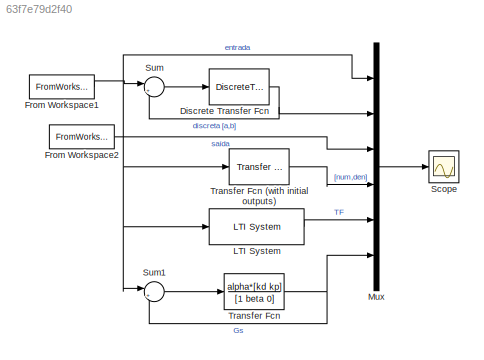
MODEL slx_63f7e79d2f40
KIND model
CONFIG AbsTol = auto
CONFIG EnableMultiTasking = off
CONFIG FixedStep = auto
CONFIG MaxStep = auto
CONFIG MinStep = auto
CONFIG RelTol = 1e-3
CONFIG SampleTimeConstraint = Unconstrained
CONFIG Solver = VariableStepAuto
CONFIG SolverName = VariableStepAuto
CONFIG StartTime = 0.0
CONFIG StopTime = 2.34
BLOCK [DiscreteTransferFcn] Discrete Transfer Fcn
  Denominator = conv([1 -1],[1 -b])
  InputPortMap = u0
  Numerator = a*[5 -2]
  Ports = [1, 1]
  SampleTime = dt
BLOCK [FromWorkspace] From Workspace1
  SampleTime = dt
  VariableName = uu
  ZeroCross = on
BLOCK [FromWorkspace] From Workspace2
  SampleTime = dt
  VariableName = yy
  ZeroCross = on
BLOCK [Reference] LTI System  REF=cstblocks/LTI System
  Ports = [1, 1]
  SourceBlock = cstblocks/LTI System
  SourceProductBaseCode = CT
  SourceProductName = Control System Toolbox
  SourceType = LTI Block
BLOCK [Mux] Mux
  DisplayOption = bar
  Inputs = 6
  Ports = [6, 1]
BLOCK [Scope] Scope
  Floating = off
  NumInputPorts = 1
  Ports = [1]
  ScopeSpecificationString = Simulink.scopes.TimeScopeBlockCfg('CurrentConfiguration', extmgr.ConfigurationSet(extmgr.Configuration('Core','General UI',true),extmgr.Configuration('Core','Source UI',true),extmgr.Configuration('Sources','WiredSimulink',true),extmgr.Configuration('Visuals','Time Domain',true,'SerializedDisplays',{struct('MinYLimReal','-2.72434','MaxYLimReal','2.57881','YLabelReal','','MinYLimMag','0.00000','MaxY...<+1538ch>
BLOCK [Sum] Sum
  IconShape = round
  InputSameDT = off
  Inputs = |+-
  OutDataTypeStr = Inherit: Inherit via internal rule
  Ports = [2, 1]
  SaturateOnIntegerOverflow = off
BLOCK [Sum] Sum1
  IconShape = round
  InputSameDT = off
  Inputs = |+-
  OutDataTypeStr = Inherit: Inherit via internal rule
  Ports = [2, 1]
  SaturateOnIntegerOverflow = off
BLOCK [TransferFcn] Transfer Fcn
  Denominator = [1 beta 0]
  Numerator = alpha*[kd kp]
BLOCK [Reference] Transfer Fcn (with initial outputs)  REF=simulink_extras/Additional
Linear/Transfer Fcn
(with initial outputs)
  Ports = [1, 1]
  SourceBlock = simulink_extras/Additional\nLinear/Transfer Fcn\n(with initial outputs)
  SourceProductBaseCode = SL
  SourceProductName = Simulink
  SourceType = Transfer Function with Initial Outputs
NET Discrete Transfer Fcn:1 -> Mux:2, Sum:2
NET From Workspace1:1 -> LTI System:1, Mux:1, Sum1:1, Sum:1, Transfer Fcn (with initial outputs):1
LINE From Workspace2:1 -> Mux:3
LINE LTI System:1 -> Mux:5
LINE Mux:1 -> Scope:1
LINE Sum1:1 -> Transfer Fcn:1
LINE Sum:1 -> Discrete Transfer Fcn:1
LINE Transfer Fcn (with initial outputs):1 -> Mux:4
NET Transfer Fcn:1 -> Mux:6, Sum1:2
note: NET lines group one-source signal fan-out (src -> all destinations, sorted); 1:1 wires keep LINE
